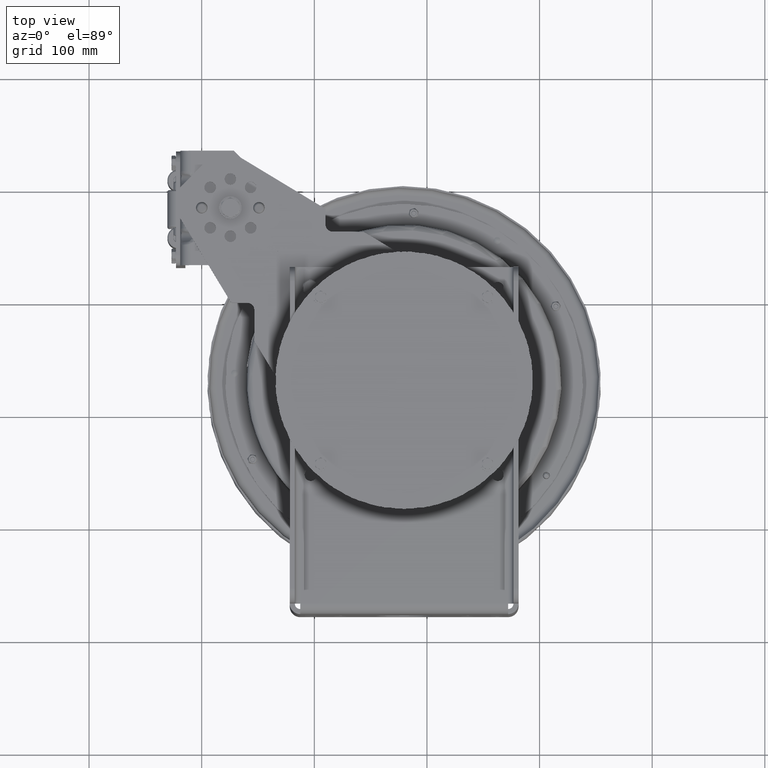
[diagram: clean part render]
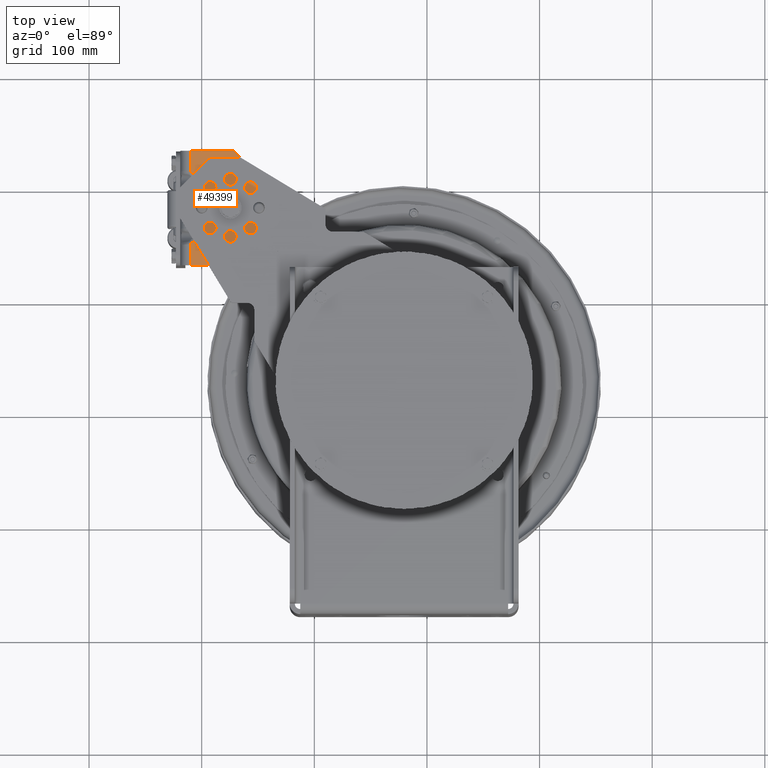
[diagram: same view with one face highlighted and labeled with its STEP entity id]
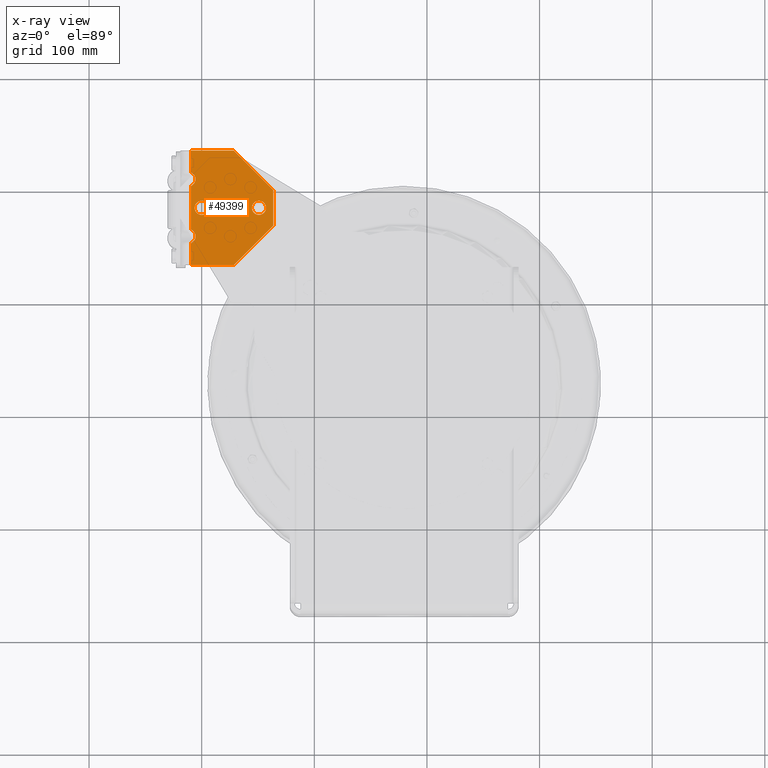
[diagram: x-ray of the same camera — body ghosted, the highlighted face saturated]
A machine part, top view. The second image highlights one B-rep face of the part: STEP entity #49399.
The next image is the same camera in x-ray: the body ghosted, the highlighted face saturated — about 0% of this face is hidden behind the body in this view.
In plain terms, the highlighted planar face has unit normal (0, -0, -1).
Its self-contained STEP definition (entity closure, byte-faithful):
#1091=ELLIPSE('',#53197,0.441941738241592,0.3125);
#1092=ELLIPSE('',#53198,0.441941738241592,0.3125);
#2664=FACE_BOUND('',#8882,.T.);
#2665=FACE_BOUND('',#8883,.T.);
#2666=FACE_BOUND('',#8884,.T.);
#3864=PLANE('',#53196);
#5424=FACE_OUTER_BOUND('',#8881,.T.);
#8881=EDGE_LOOP('',(#33296,#33297,#33298,#33299,#33300,#33301,#33302,#33303,
#33304,#33305));
#8882=EDGE_LOOP('',(#33306));
#8883=EDGE_LOOP('',(#33307));
#8884=EDGE_LOOP('',(#33308));
#12926=LINE('',#79315,#15310);
#12927=LINE('',#79317,#15311);
#12928=LINE('',#79319,#15312);
#12929=LINE('',#79321,#15313);
#12930=LINE('',#79323,#15314);
#12931=LINE('',#79325,#15315);
#12932=LINE('',#79327,#15316);
#12933=LINE('',#79330,#15317);
#15310=VECTOR('',#60596,0.757053815722154);
#15311=VECTOR('',#60597,1.5057);
#15312=VECTOR('',#60598,1.94454364826301);
#15313=VECTOR('',#60599,1.25);
#15314=VECTOR('',#60600,1.94454364826301);
#15315=VECTOR('',#60601,1.5057);
#15316=VECTOR('',#60602,0.757053815722147);
#15317=VECTOR('',#60605,1.5141076314443);
#17801=CIRCLE('',#53195,0.2475);
#17802=CIRCLE('',#53199,0.2475);
#17803=CIRCLE('',#53200,0.25);
#20917=VERTEX_POINT('',#79308);
#20918=VERTEX_POINT('',#79311);
#20919=VERTEX_POINT('',#79312);
#20920=VERTEX_POINT('',#79314);
#20921=VERTEX_POINT('',#79316);
#20922=VERTEX_POINT('',#79318);
#20923=VERTEX_POINT('',#79320);
#20924=VERTEX_POINT('',#79322);
#20925=VERTEX_POINT('',#79324);
#20926=VERTEX_POINT('',#79326);
#20927=VERTEX_POINT('',#79328);
#20928=VERTEX_POINT('',#79331);
#20929=VERTEX_POINT('',#79333);
#25719=EDGE_CURVE('',#20917,#20917,#17801,.T.);
#25720=EDGE_CURVE('',#20918,#20919,#1091,.T.);
#25721=EDGE_CURVE('',#20918,#20920,#12926,.T.);
#25722=EDGE_CURVE('',#20921,#20920,#12927,.T.);
#25723=EDGE_CURVE('',#20922,#20921,#12928,.T.);
#25724=EDGE_CURVE('',#20923,#20922,#12929,.T.);
#25725=EDGE_CURVE('',#20924,#20923,#12930,.T.);
#25726=EDGE_CURVE('',#20925,#20924,#12931,.T.);
#25727=EDGE_CURVE('',#20925,#20926,#12932,.T.);
#25728=EDGE_CURVE('',#20927,#20926,#1092,.T.);
#25729=EDGE_CURVE('',#20927,#20919,#12933,.T.);
#25730=EDGE_CURVE('',#20928,#20928,#17802,.T.);
#25731=EDGE_CURVE('',#20929,#20929,#17803,.T.);
#33296=ORIENTED_EDGE('',*,*,#25720,.F.);
#33297=ORIENTED_EDGE('',*,*,#25721,.T.);
#33298=ORIENTED_EDGE('',*,*,#25722,.F.);
#33299=ORIENTED_EDGE('',*,*,#25723,.F.);
#33300=ORIENTED_EDGE('',*,*,#25724,.F.);
#33301=ORIENTED_EDGE('',*,*,#25725,.F.);
#33302=ORIENTED_EDGE('',*,*,#25726,.F.);
#33303=ORIENTED_EDGE('',*,*,#25727,.T.);
#33304=ORIENTED_EDGE('',*,*,#25728,.F.);
#33305=ORIENTED_EDGE('',*,*,#25729,.T.);
#33306=ORIENTED_EDGE('',*,*,#25730,.F.);
#33307=ORIENTED_EDGE('',*,*,#25731,.T.);
#33308=ORIENTED_EDGE('',*,*,#25719,.F.);
#49399=ADVANCED_FACE('',(#5424,#2664,#2665,#2666),#3864,.F.);
#53195=AXIS2_PLACEMENT_3D('',#79309,#60590,#60591);
#53196=AXIS2_PLACEMENT_3D('',#79310,#60592,#60593);
#53197=AXIS2_PLACEMENT_3D('',#79313,#60594,#60595);
#53198=AXIS2_PLACEMENT_3D('',#79329,#60603,#60604);
#53199=AXIS2_PLACEMENT_3D('',#79332,#60606,#60607);
#53200=AXIS2_PLACEMENT_3D('',#79334,#60608,#60609);
#60590=DIRECTION('center_axis',(-1.4608487648378E-17,2.70275825996254E-14,
1.));
#60591=DIRECTION('ref_axis',(1.,1.57228241463751E-13,1.46084876441286E-17));
#60592=DIRECTION('center_axis',(1.4608487648378E-17,-2.70275825996254E-14,
-1.));
#60593=DIRECTION('ref_axis',(1.,1.57636126374427E-13,0.));
#60594=DIRECTION('center_axis',(-1.4608487648378E-17,2.70275825996254E-14,
1.));
#60595=DIRECTION('ref_axis',(1.,1.57386639717475E-13,1.46084876441239E-17));
#60596=DIRECTION('',(1.57335430773336E-13,-1.,2.70275825996254E-14));
#60597=DIRECTION('',(-1.,-1.57335430773336E-13,-4.06404343238475E-16));
#60598=DIRECTION('',(-0.707106781186436,-0.707106781186659,1.91010571745986E-14));
#60599=DIRECTION('',(1.57335430773336E-13,-1.,2.70128726488903E-14));
#60600=DIRECTION('',(0.707106781186659,-0.707106781186436,1.91217166959507E-14));
#60601=DIRECTION('',(1.,1.57335430773336E-13,4.67636683195843E-16));
#60602=DIRECTION('',(1.57335430773336E-13,-1.,2.70275825996254E-14));
#60603=DIRECTION('center_axis',(-1.4608487648378E-17,2.70275825996254E-14,
1.));
#60604=DIRECTION('ref_axis',(1.,1.57324825053747E-13,1.4608487644126E-17));
#60605=DIRECTION('',(1.57335430773336E-13,-1.,2.70275825996254E-14));
#60606=DIRECTION('center_axis',(-1.4608487648378E-17,2.70275825996254E-14,
1.));
#60607=DIRECTION('ref_axis',(1.,1.57228241463751E-13,1.46084876441286E-17));
#60608=DIRECTION('center_axis',(1.4608487648378E-17,-2.70275825996254E-14,
-1.));
#60609=DIRECTION('ref_axis',(-1.,-1.57685107316525E-13,-1.46084876441162E-17));
#79308=CARTESIAN_POINT('',(-8.11926618723675,-0.720059275775281,-8.79325804599759));
#79309=CARTESIAN_POINT('Origin',(-7.87176618723675,-0.720059275775242,-8.79325804599759));
#79310=CARTESIAN_POINT('Origin',(-7.02330347018902,-0.720059275775108,-8.79325804599759));
#79311=CARTESIAN_POINT('',(-8.25246618723656,-1.96300546005315,-8.79325804599756));
#79312=CARTESIAN_POINT('',(-8.25246618723664,-1.47711309149745,-8.79325804599757));
#79313=CARTESIAN_POINT('Origin',(-8.53043525582098,-1.72005927577535,-8.79325804599756));
#79314=CARTESIAN_POINT('',(-8.25246618723644,-2.7200592757753,-8.79325804599753));
#79315=CARTESIAN_POINT('',(-8.25246618723676,-0.720059275775301,-8.79325804599759));
#79316=CARTESIAN_POINT('',(-6.74676618723644,-2.72005927577506,-8.79325804599753));
#79317=CARTESIAN_POINT('',(-9.09721531904551,-2.72005927577543,-8.79325804599754));
#79318=CARTESIAN_POINT('',(-5.37176618723666,-1.34505927577485,-8.79325804599757));
#79319=CARTESIAN_POINT('',(-5.97215050797463,-1.94544359651301,-8.79325804599756));
#79320=CARTESIAN_POINT('',(-5.37176618723685,-0.0950592757748474,-8.79325804599761));
#79321=CARTESIAN_POINT('',(-5.37176618723707,1.27994072422515,-8.79325804599764));
#79322=CARTESIAN_POINT('',(-6.74676618723707,1.27994072422494,-8.79325804599764));
#79323=CARTESIAN_POINT('',(-5.97215050797501,0.505325044963124,-8.79325804599762));
#79324=CARTESIAN_POINT('',(-8.25246618723707,1.2799407242247,-8.79325804599764));
#79325=CARTESIAN_POINT('',(-8.25246618723707,1.2799407242247,-8.79325804599764));
#79326=CARTESIAN_POINT('',(-8.25246618723696,0.522886908502553,-8.79325804599762));
#79327=CARTESIAN_POINT('',(-8.25246618723676,-0.720059275775301,-8.79325804599759));
#79328=CARTESIAN_POINT('',(-8.25246618723688,0.0369945399468538,-8.79325804599761));
#79329=CARTESIAN_POINT('Origin',(-8.53043525582129,0.279940724224657,-8.79325804599762));
#79330=CARTESIAN_POINT('',(-8.25246618723676,-0.720059275775301,-8.79325804599759));
#79331=CARTESIAN_POINT('',(-6.11926618723675,-0.720059275774965,-8.79325804599759));
#79332=CARTESIAN_POINT('Origin',(-5.87176618723675,-0.720059275774926,-8.79325804599759));
#79333=CARTESIAN_POINT('',(-7.12176618723676,-0.720059275775123,-8.79325804599759));
#79334=CARTESIAN_POINT('Origin',(-6.87176618723675,-0.720059275775084,-8.79325804599759));